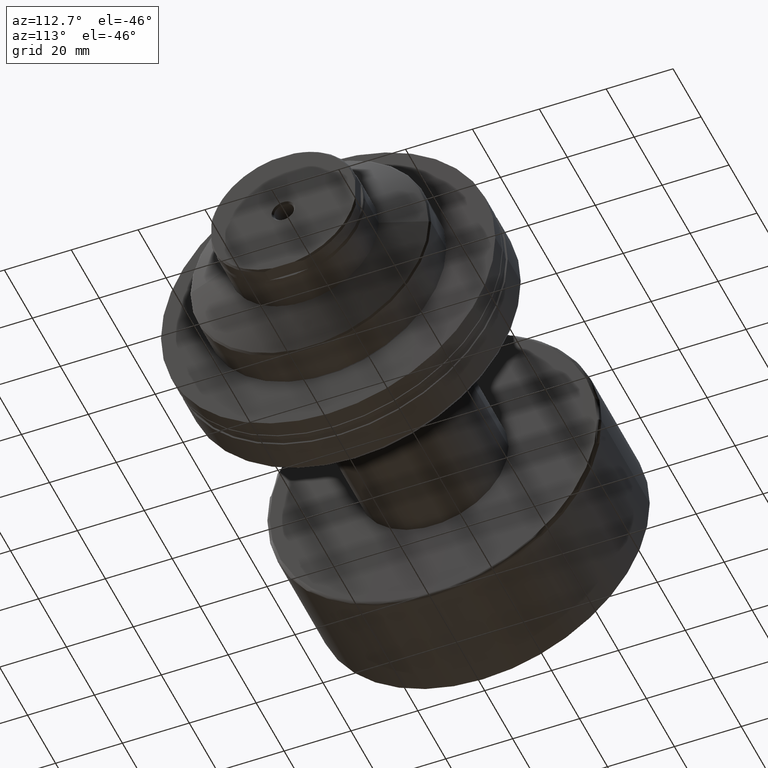
[diagram: clean part render]
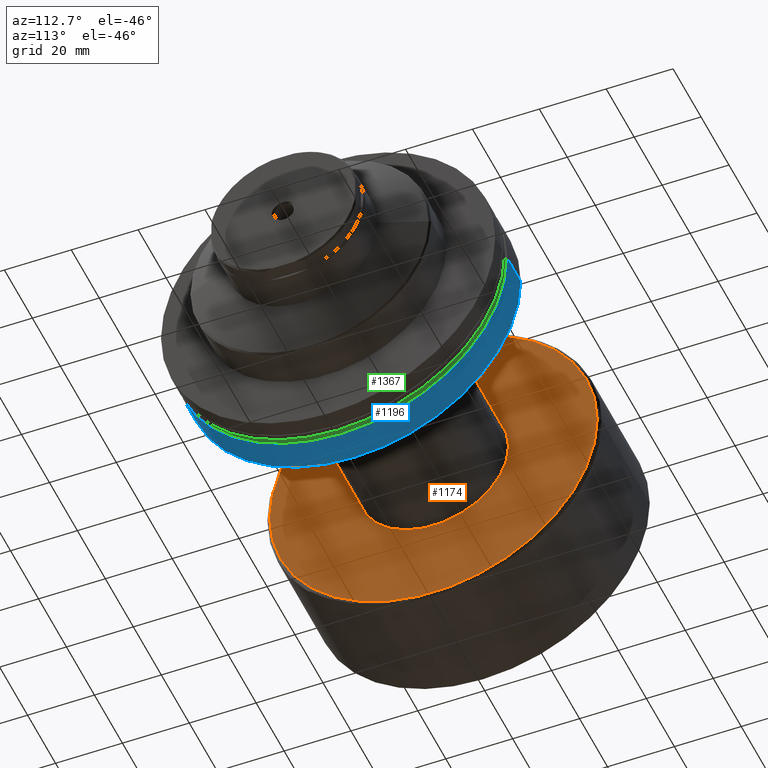
[diagram: same view with three faces highlighted in distinct colors, each labeled with its STEP entity id]
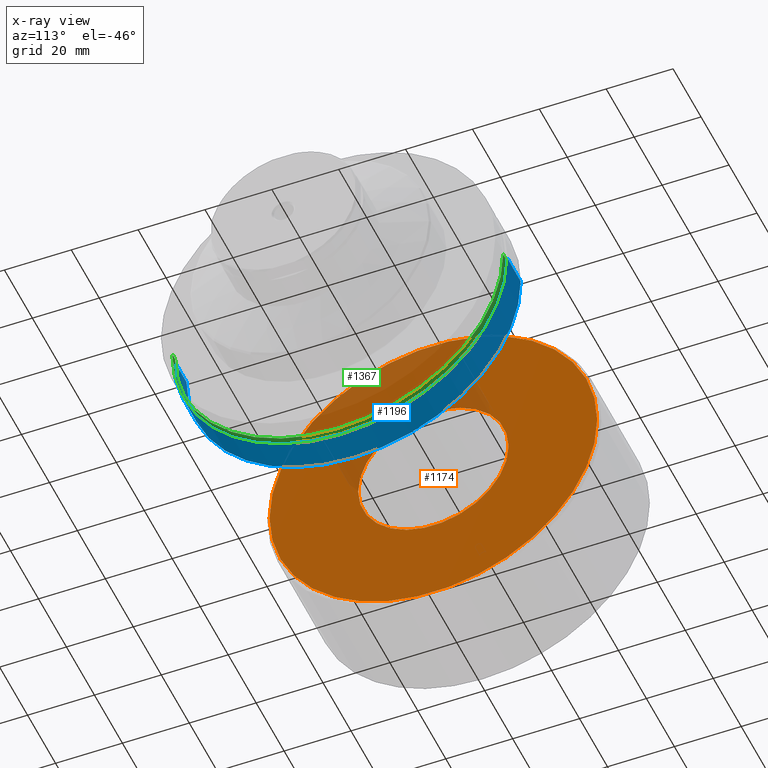
[diagram: x-ray of the same camera — body ghosted, the three highlighted faces saturated]
A machine part, auxiliary view with three faces highlighted in distinct colors.
The next image is the same camera in x-ray (body ghosted, the three faces saturated) — at least one of them is partly hidden behind the body in this view.
Their STEP definitions:

[orange] entity #1174 — the highlighted planar face has unit normal (-1, -0, 0).
#22 = DIRECTION ( 'NONE',  ( 0.000000000000000000, -1.000000000000000000, 0.000000000000000000 ) ) ;
#88 = CARTESIAN_POINT ( 'NONE',  ( 36.70000000000000284, -49.00000000000000000, 0.000000000000000000 ) ) ;
#192 = CIRCLE ( 'NONE', #1419, 49.00000000000000000 ) ;
#193 = DIRECTION ( 'NONE',  ( -1.000000000000000000, -1.069542322069065801E-17, -0.000000000000000000 ) ) ;
#201 = ORIENTED_EDGE ( 'NONE', *, *, #690, .F. ) ;
#224 = EDGE_CURVE ( 'NONE', #1322, #1772, #1443, .T. ) ;
#230 = CIRCLE ( 'NONE', #1666, 22.50000000000000000 ) ;
#371 = PLANE ( 'NONE',  #1960 ) ;
#374 = CARTESIAN_POINT ( 'NONE',  ( 36.70000000000000284, 3.925220321993471577E-16, 0.000000000000000000 ) ) ;
#690 = EDGE_CURVE ( 'NONE', #1110, #889, #1448, .T. ) ;
#734 = DIRECTION ( 'NONE',  ( 0.000000000000000000, -1.000000000000000000, 0.000000000000000000 ) ) ;
#744 = EDGE_CURVE ( 'NONE', #1772, #1322, #230, .T. ) ;
#807 = EDGE_LOOP ( 'NONE', ( #1127, #201 ) ) ;
#889 = VERTEX_POINT ( 'NONE', #88 ) ;
#949 = DIRECTION ( 'NONE',  ( -1.000000000000000000, -1.069542322069065801E-17, -0.000000000000000000 ) ) ;
#1016 = AXIS2_PLACEMENT_3D ( 'NONE', #1254, #1266, #1949 ) ;
#1101 = AXIS2_PLACEMENT_3D ( 'NONE', #1502, #1306, #2189 ) ;
#1110 = VERTEX_POINT ( 'NONE', #1144 ) ;
#1127 = ORIENTED_EDGE ( 'NONE', *, *, #1142, .F. ) ;
#1142 = EDGE_CURVE ( 'NONE', #889, #1110, #192, .T. ) ;
#1144 = CARTESIAN_POINT ( 'NONE',  ( 36.70000000000000284, 49.00000000000000000, 6.062001655779398511E-15 ) ) ;
#1174 = ADVANCED_FACE ( 'NONE', ( #2023, #1658 ), #371, .F. ) ;
#1177 = ORIENTED_EDGE ( 'NONE', *, *, #224, .T. ) ;
#1206 = CARTESIAN_POINT ( 'NONE',  ( 36.70000000000000284, 22.50000000000000000, 2.755455298081550694E-15 ) ) ;
#1249 = ORIENTED_EDGE ( 'NONE', *, *, #744, .T. ) ;
#1254 = CARTESIAN_POINT ( 'NONE',  ( 36.70000000000000284, 3.925220321993471577E-16, 0.000000000000000000 ) ) ;
#1266 = DIRECTION ( 'NONE',  ( -1.000000000000000000, -1.069542322069065801E-17, -0.000000000000000000 ) ) ;
#1276 = CARTESIAN_POINT ( 'NONE',  ( 36.70000000000000284, 3.925220321993471577E-16, 0.000000000000000000 ) ) ;
#1306 = DIRECTION ( 'NONE',  ( -1.000000000000000000, -1.069542322069065801E-17, -0.000000000000000000 ) ) ;
#1312 = DIRECTION ( 'NONE',  ( 1.069542322069065801E-17, -1.000000000000000000, 0.000000000000000000 ) ) ;
#1322 = VERTEX_POINT ( 'NONE', #1719 ) ;
#1419 = AXIS2_PLACEMENT_3D ( 'NONE', #1276, #949, #734 ) ;
#1443 = CIRCLE ( 'NONE', #1016, 22.50000000000000000 ) ;
#1448 = CIRCLE ( 'NONE', #1101, 49.00000000000000000 ) ;
#1487 = CARTESIAN_POINT ( 'NONE',  ( 36.70000000000000284, -22.50000000000000000, 0.000000000000000000 ) ) ;
#1498 = EDGE_LOOP ( 'NONE', ( #1177, #1249 ) ) ;
#1502 = CARTESIAN_POINT ( 'NONE',  ( 36.70000000000000284, 3.925220321993471577E-16, 0.000000000000000000 ) ) ;
#1658 = FACE_BOUND ( 'NONE', #1498, .T. ) ;
#1666 = AXIS2_PLACEMENT_3D ( 'NONE', #374, #193, #22 ) ;
#1719 = CARTESIAN_POINT ( 'NONE',  ( 36.70000000000000284, -22.50000000000000000, 0.000000000000000000 ) ) ;
#1772 = VERTEX_POINT ( 'NONE', #1206 ) ;
#1949 = DIRECTION ( 'NONE',  ( 0.000000000000000000, -1.000000000000000000, 0.000000000000000000 ) ) ;
#1960 = AXIS2_PLACEMENT_3D ( 'NONE', #1487, #2186, #1312 ) ;
#2023 = FACE_OUTER_BOUND ( 'NONE', #807, .T. ) ;
#2186 = DIRECTION ( 'NONE',  ( -1.000000000000000000, -1.069542322069065801E-17, 0.000000000000000000 ) ) ;
#2189 = DIRECTION ( 'NONE',  ( 0.000000000000000000, -1.000000000000000000, 0.000000000000000000 ) ) ;

[blue] entity #1196 — the highlighted cylindrical surface (partial cylindrical patch) has radius 50 mm, axis along (1, 0, 0).
#28 = CARTESIAN_POINT ( 'NONE',  ( -34.80878161770240098, -1.125584449459051283E-15, 0.000000000000000000 ) ) ;
#228 = AXIS2_PLACEMENT_3D ( 'NONE', #28, #390, #1638 ) ;
#306 = VECTOR ( 'NONE', #1511, 1000.000000000000000 ) ;
#378 = CARTESIAN_POINT ( 'NONE',  ( -34.80878161770238677, -50.00000000000000000, 6.123233995736766085E-15 ) ) ;
#385 = FACE_OUTER_BOUND ( 'NONE', #787, .T. ) ;
#390 = DIRECTION ( 'NONE',  ( 1.000000000000000000, 2.485414848852932351E-16, -0.000000000000000000 ) ) ;
#408 = DIRECTION ( 'NONE',  ( -2.775557561562891351E-16, 1.000000000000000000, 0.000000000000000000 ) ) ;
#459 = DIRECTION ( 'NONE',  ( -2.775557561562891351E-16, 1.000000000000000000, 0.000000000000000000 ) ) ;
#484 = LINE ( 'NONE', #1171, #306 ) ;
#569 = CARTESIAN_POINT ( 'NONE',  ( -30.28002276692732408, 0.000000000000000000, 0.000000000000000000 ) ) ;
#618 = EDGE_CURVE ( 'NONE', #1559, #1510, #1255, .T. ) ;
#677 = ORIENTED_EDGE ( 'NONE', *, *, #1275, .F. ) ;
#726 = VERTEX_POINT ( 'NONE', #1148 ) ;
#787 = EDGE_LOOP ( 'NONE', ( #677, #2075, #1164, #1372 ) ) ;
#821 = DIRECTION ( 'NONE',  ( 1.000000000000000000, 2.485414848852932351E-16, -0.000000000000000000 ) ) ;
#858 = EDGE_CURVE ( 'NONE', #726, #1510, #484, .T. ) ;
#1037 = CARTESIAN_POINT ( 'NONE',  ( -44.20000000000018048, -3.459691811077403828E-15, 0.000000000000000000 ) ) ;
#1078 = CIRCLE ( 'NONE', #1114, 50.00000000000000000 ) ;
#1114 = AXIS2_PLACEMENT_3D ( 'NONE', #1037, #821, #459 ) ;
#1148 = CARTESIAN_POINT ( 'NONE',  ( -44.20000000000019469, 49.99999999999999289, 0.000000000000000000 ) ) ;
#1164 = ORIENTED_EDGE ( 'NONE', *, *, #858, .T. ) ;
#1171 = CARTESIAN_POINT ( 'NONE',  ( -30.28002276692733830, 50.00000000000000000, 0.000000000000000000 ) ) ;
#1189 = DIRECTION ( 'NONE',  ( 1.000000000000000000, 2.485414848852932351E-16, -0.000000000000000000 ) ) ;
#1196 = ADVANCED_FACE ( 'NONE', ( #385 ), #1470, .T. ) ;
#1255 = CIRCLE ( 'NONE', #228, 50.00000000000000000 ) ;
#1260 = AXIS2_PLACEMENT_3D ( 'NONE', #569, #2013, #408 ) ;
#1275 = EDGE_CURVE ( 'NONE', #2179, #1559, #1707, .T. ) ;
#1372 = ORIENTED_EDGE ( 'NONE', *, *, #618, .F. ) ;
#1470 = CYLINDRICAL_SURFACE ( 'NONE', #1260, 50.00000000000000000 ) ;
#1510 = VERTEX_POINT ( 'NONE', #2164 ) ;
#1511 = DIRECTION ( 'NONE',  ( 1.000000000000000000, 2.485414848852932351E-16, -0.000000000000000000 ) ) ;
#1559 = VERTEX_POINT ( 'NONE', #378 ) ;
#1638 = DIRECTION ( 'NONE',  ( -2.775557561562891351E-16, 1.000000000000000000, 0.000000000000000000 ) ) ;
#1707 = LINE ( 'NONE', #1899, #2292 ) ;
#1879 = CARTESIAN_POINT ( 'NONE',  ( -44.20000000000016627, -50.00000000000000711, 6.123233995736766085E-15 ) ) ;
#1899 = CARTESIAN_POINT ( 'NONE',  ( -30.28002276692730987, -50.00000000000000000, 6.123233995736766085E-15 ) ) ;
#2013 = DIRECTION ( 'NONE',  ( 1.000000000000000000, 2.485414848852932351E-16, -0.000000000000000000 ) ) ;
#2075 = ORIENTED_EDGE ( 'NONE', *, *, #2301, .T. ) ;
#2164 = CARTESIAN_POINT ( 'NONE',  ( -34.80878161770241519, 50.00000000000000000, 0.000000000000000000 ) ) ;
#2179 = VERTEX_POINT ( 'NONE', #1879 ) ;
#2292 = VECTOR ( 'NONE', #1189, 1000.000000000000000 ) ;
#2301 = EDGE_CURVE ( 'NONE', #2179, #726, #1078, .T. ) ;

[green] entity #1367 — the highlighted cylindrical surface (partial cylindrical patch) has radius 49.5 mm, axis along (1, 0, 0).
#81 = EDGE_CURVE ( 'NONE', #210, #1225, #379, .T. ) ;
#84 = CYLINDRICAL_SURFACE ( 'NONE', #1302, 49.50000000000000000 ) ;
#89 = DIRECTION ( 'NONE',  ( 1.000000000000000000, 2.485414848852932351E-16, -0.000000000000000000 ) ) ;
#100 = DIRECTION ( 'NONE',  ( -2.803593496528172893E-16, 1.000000000000000000, 0.000000000000000000 ) ) ;
#119 = DIRECTION ( 'NONE',  ( 1.000000000000000000, 2.485414848852932351E-16, -0.000000000000000000 ) ) ;
#152 = VERTEX_POINT ( 'NONE', #1928 ) ;
#188 = CIRCLE ( 'NONE', #720, 49.49999999999999289 ) ;
#210 = VERTEX_POINT ( 'NONE', #1581 ) ;
#360 = EDGE_CURVE ( 'NONE', #152, #1890, #188, .T. ) ;
#368 = CARTESIAN_POINT ( 'NONE',  ( -32.80000000000003979, 49.49999999999999289, 0.000000000000000000 ) ) ;
#379 = CIRCLE ( 'NONE', #1990, 49.50000000000000000 ) ;
#454 = DIRECTION ( 'NONE',  ( -2.803593496528172893E-16, 1.000000000000000000, 0.000000000000000000 ) ) ;
#633 = CARTESIAN_POINT ( 'NONE',  ( -34.80878161770240098, -1.125584449459051283E-15, 0.000000000000000000 ) ) ;
#691 = VECTOR ( 'NONE', #2248, 1000.000000000000000 ) ;
#720 = AXIS2_PLACEMENT_3D ( 'NONE', #1752, #119, #1549 ) ;
#768 = CARTESIAN_POINT ( 'NONE',  ( -34.80878161770241519, 49.50000000000000000, 0.000000000000000000 ) ) ;
#806 = CARTESIAN_POINT ( 'NONE',  ( -30.28002276692732408, 0.000000000000000000, 0.000000000000000000 ) ) ;
#1120 = DIRECTION ( 'NONE',  ( 1.000000000000000000, 2.485414848852932351E-16, -0.000000000000000000 ) ) ;
#1225 = VERTEX_POINT ( 'NONE', #768 ) ;
#1302 = AXIS2_PLACEMENT_3D ( 'NONE', #806, #2252, #454 ) ;
#1367 = ADVANCED_FACE ( 'NONE', ( #2220 ), #84, .T. ) ;
#1457 = VECTOR ( 'NONE', #1120, 1000.000000000000000 ) ;
#1544 = CARTESIAN_POINT ( 'NONE',  ( -30.28002276692733830, 49.50000000000000000, 0.000000000000000000 ) ) ;
#1549 = DIRECTION ( 'NONE',  ( -2.803593496528173386E-16, 1.000000000000000000, 0.000000000000000000 ) ) ;
#1581 = CARTESIAN_POINT ( 'NONE',  ( -34.80878161770238677, -49.50000000000000000, 6.062001655779398511E-15 ) ) ;
#1583 = ORIENTED_EDGE ( 'NONE', *, *, #1769, .T. ) ;
#1709 = ORIENTED_EDGE ( 'NONE', *, *, #360, .F. ) ;
#1735 = LINE ( 'NONE', #1544, #691 ) ;
#1752 = CARTESIAN_POINT ( 'NONE',  ( -32.80000000000002558, -6.263188833850209719E-16, 0.000000000000000000 ) ) ;
#1769 = EDGE_CURVE ( 'NONE', #1225, #1890, #1735, .T. ) ;
#1793 = CARTESIAN_POINT ( 'NONE',  ( -30.28002276692730987, -49.50000000000000000, 6.062001655779398511E-15 ) ) ;
#1815 = LINE ( 'NONE', #1793, #1457 ) ;
#1890 = VERTEX_POINT ( 'NONE', #368 ) ;
#1928 = CARTESIAN_POINT ( 'NONE',  ( -32.80000000000001137, -49.49999999999999289, 6.062001655779397722E-15 ) ) ;
#1956 = ORIENTED_EDGE ( 'NONE', *, *, #1993, .F. ) ;
#1990 = AXIS2_PLACEMENT_3D ( 'NONE', #633, #89, #100 ) ;
#1993 = EDGE_CURVE ( 'NONE', #210, #152, #1815, .T. ) ;
#2018 = ORIENTED_EDGE ( 'NONE', *, *, #81, .T. ) ;
#2220 = FACE_OUTER_BOUND ( 'NONE', #2261, .T. ) ;
#2248 = DIRECTION ( 'NONE',  ( 1.000000000000000000, 2.485414848852932351E-16, -0.000000000000000000 ) ) ;
#2252 = DIRECTION ( 'NONE',  ( 1.000000000000000000, 2.485414848852932351E-16, -0.000000000000000000 ) ) ;
#2261 = EDGE_LOOP ( 'NONE', ( #1956, #2018, #1583, #1709 ) ) ;